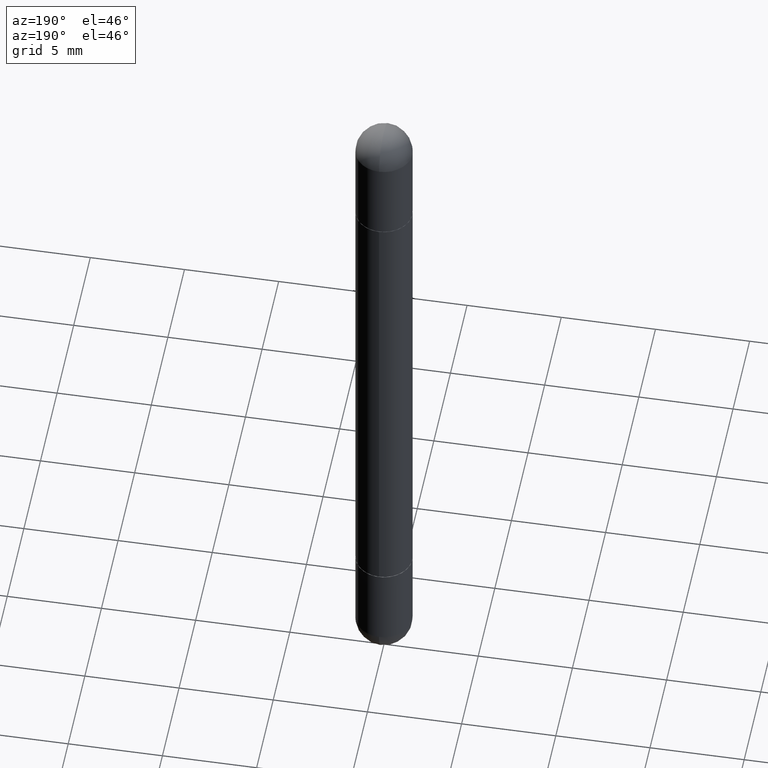
[diagram: clean part render]
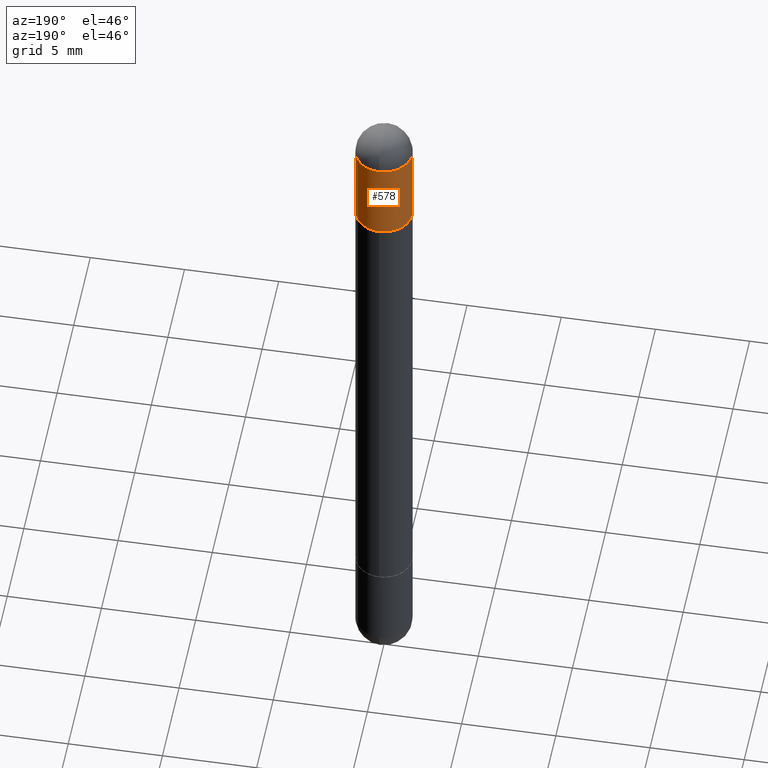
[diagram: same view with one face highlighted and labeled with its STEP entity id]
A machine part, auxiliary view. The second image highlights one B-rep face of the part: STEP entity #578.
In plain terms, the highlighted cylindrical surface (edge-blend (fillet) strip) has radius 1.4999 mm, axis along (-0, 0, -1).
Its self-contained STEP definition (entity closure, byte-faithful):
#15 = EDGE_CURVE ( 'NONE', #599, #256, #668, .T. ) ;
#27 = DIRECTION ( 'NONE',  ( 2.445468806185136597E-29, -3.491481338843145583E-15, 1.000000000000000000 ) ) ;
#65 = CIRCLE ( 'NONE', #524, 0.05905000000000001914 ) ;
#100 = EDGE_CURVE ( 'NONE', #121, #599, #685, .T. ) ;
#121 = VERTEX_POINT ( 'NONE', #247 ) ;
#123 = CYLINDRICAL_SURFACE ( 'NONE', #146, 0.05905000000000001914 ) ;
#134 = DIRECTION ( 'NONE',  ( 2.445468806185136597E-29, -3.491481338843145583E-15, 1.000000000000000000 ) ) ;
#142 = VERTEX_POINT ( 'NONE', #304 ) ;
#146 = AXIS2_PLACEMENT_3D ( 'NONE', #329, #193, #257 ) ;
#149 = DIRECTION ( 'NONE',  ( 1.000000000000000000, -6.982962677686270655E-15, 0.000000000000000000 ) ) ;
#163 = DIRECTION ( 'NONE',  ( -2.445468806185136877E-29, 3.491481338843145188E-15, -1.000000000000000000 ) ) ;
#181 = CARTESIAN_POINT ( 'NONE',  ( 3.514260947928350449E-29, -5.017433257984542594E-15, -0.05905000000000028976 ) ) ;
#182 = AXIS2_PLACEMENT_3D ( 'NONE', #181, #134, #430 ) ;
#193 = DIRECTION ( 'NONE',  ( -2.445468806185136597E-29, 3.491481338843145583E-15, -1.000000000000000000 ) ) ;
#194 = EDGE_CURVE ( 'NONE', #142, #408, #249, .T. ) ;
#232 = ORIENTED_EDGE ( 'NONE', *, *, #194, .T. ) ;
#247 = CARTESIAN_POINT ( 'NONE',  ( 4.123439461174084467E-16, 0.05904999999999487742, -0.05905000000000008159 ) ) ;
#249 = LINE ( 'NONE', #811, #250 ) ;
#250 = VECTOR ( 'NONE', #255, 39.37007874015748143 ) ;
#255 = DIRECTION ( 'NONE',  ( -2.445468806185136877E-29, 3.491481338843145188E-15, -1.000000000000000000 ) ) ;
#256 = VERTEX_POINT ( 'NONE', #634 ) ;
#257 = DIRECTION ( 'NONE',  ( 1.000000000000000000, -6.982962677686266711E-15, 0.000000000000000000 ) ) ;
#279 = CARTESIAN_POINT ( 'NONE',  ( 3.514260947928350449E-29, -5.017433257984542594E-15, -0.05905000000000028976 ) ) ;
#304 = CARTESIAN_POINT ( 'NONE',  ( 0.05905000000000001914, -5.120519244513884944E-15, -0.05905000000000028976 ) ) ;
#317 = EDGE_CURVE ( 'NONE', #408, #256, #65, .T. ) ;
#329 = CARTESIAN_POINT ( 'NONE',  ( 0.000000000000000000, 0.000000000000000000, -1.496100000000000207 ) ) ;
#355 = CARTESIAN_POINT ( 'NONE',  ( 0.05905000000000001914, -4.811261284925853162E-15, -0.2362000000000003264 ) ) ;
#408 = VERTEX_POINT ( 'NONE', #355 ) ;
#430 = DIRECTION ( 'NONE',  ( 1.000000000000000000, -6.982962677686270655E-15, 0.000000000000000000 ) ) ;
#433 = CARTESIAN_POINT ( 'NONE',  ( -0.05905000000000001914, -4.303062891628101254E-15, -0.05905000000000028976 ) ) ;
#451 = DIRECTION ( 'NONE',  ( 1.000000000000000000, -6.982962677686270655E-15, 0.000000000000000000 ) ) ;
#457 = DIRECTION ( 'NONE',  ( 2.445468806185136597E-29, -3.491481338843145583E-15, 1.000000000000000000 ) ) ;
#479 = EDGE_LOOP ( 'NONE', ( #545, #769, #612, #232, #506 ) ) ;
#506 = ORIENTED_EDGE ( 'NONE', *, *, #317, .T. ) ;
#524 = AXIS2_PLACEMENT_3D ( 'NONE', #722, #27, #451 ) ;
#545 = ORIENTED_EDGE ( 'NONE', *, *, #15, .F. ) ;
#573 = VECTOR ( 'NONE', #163, 39.37007874015748143 ) ;
#578 = ADVANCED_FACE ( 'NONE', ( #691 ), #123, .T. ) ;
#590 = CIRCLE ( 'NONE', #700, 0.05905000000000001914 ) ;
#599 = VERTEX_POINT ( 'NONE', #433 ) ;
#612 = ORIENTED_EDGE ( 'NONE', *, *, #701, .F. ) ;
#634 = CARTESIAN_POINT ( 'NONE',  ( -0.05905000000000001914, -4.303062891628101254E-15, -0.2362000000000003264 ) ) ;
#668 = LINE ( 'NONE', #736, #573 ) ;
#685 = CIRCLE ( 'NONE', #182, 0.05905000000000001914 ) ;
#691 = FACE_OUTER_BOUND ( 'NONE', #479, .T. ) ;
#700 = AXIS2_PLACEMENT_3D ( 'NONE', #279, #457, #149 ) ;
#701 = EDGE_CURVE ( 'NONE', #142, #121, #590, .T. ) ;
#722 = CARTESIAN_POINT ( 'NONE',  ( 3.081046148912652946E-29, -4.398917338808479031E-15, -0.2362000000000003264 ) ) ;
#736 = CARTESIAN_POINT ( 'NONE',  ( -0.05905000000000001914, 4.051124067684090655E-16, -1.496100000000000207 ) ) ;
#769 = ORIENTED_EDGE ( 'NONE', *, *, #100, .F. ) ;
#811 = CARTESIAN_POINT ( 'NONE',  ( 0.05905000000000001914, -4.123439461173741806E-16, -1.496100000000000207 ) ) ;